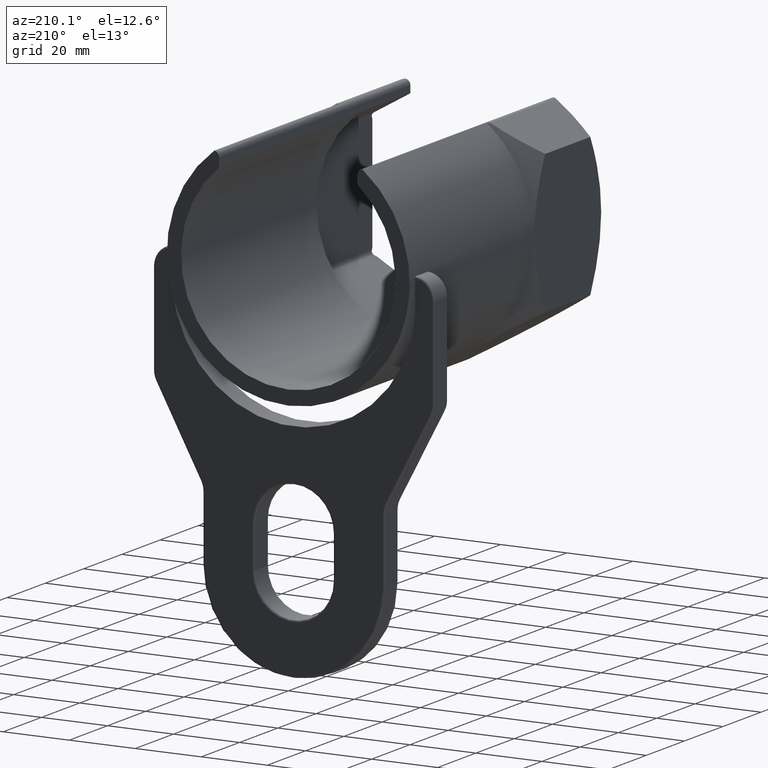
[diagram: clean part render]
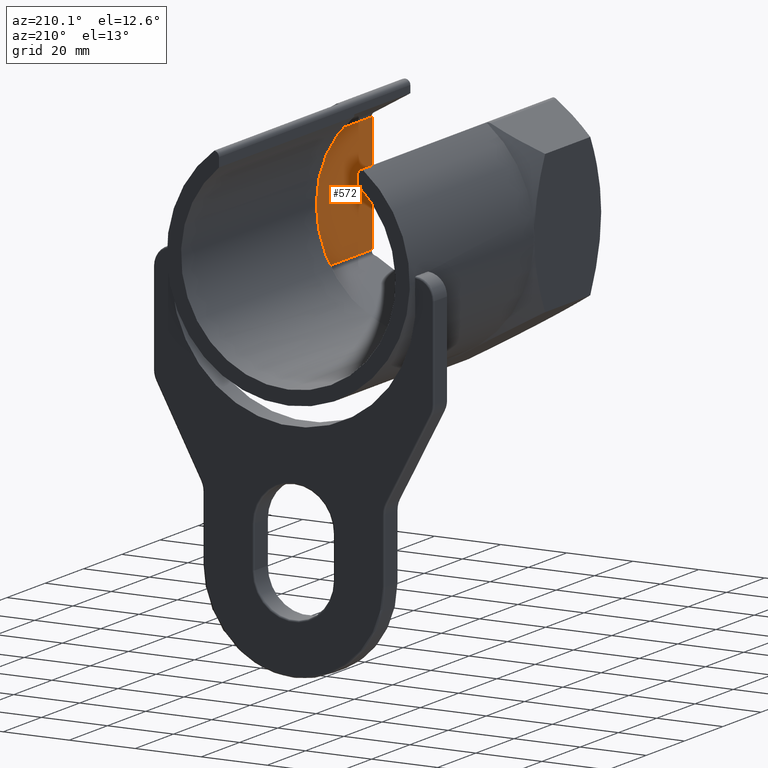
[diagram: same view with one face highlighted and labeled with its STEP entity id]
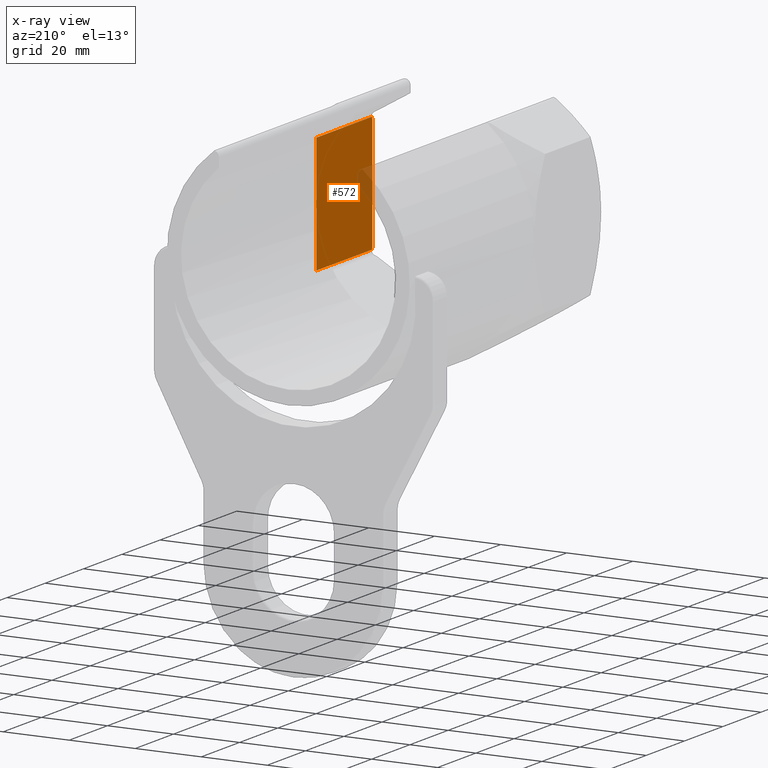
[diagram: x-ray of the same camera — body ghosted, the highlighted face saturated]
A machine part, auxiliary view. The second image highlights one B-rep face of the part: STEP entity #572.
The next image is the same camera in x-ray: the body ghosted, the highlighted face saturated — about 5% of this face is hidden behind the body in this view.
In plain terms, the highlighted planar face has unit normal (1, 0, 0).
Its self-contained STEP definition (entity closure, byte-faithful):
#430 = ORIENTED_EDGE ( 'NONE', *, *, #555, .T. ) ;
#431 = ORIENTED_EDGE ( 'NONE', *, *, #543, .F. ) ;
#432 = EDGE_CURVE ( 'NONE', #2791, #502, #1399, .T. ) ;
#433 = ORIENTED_EDGE ( 'NONE', *, *, #501, .F. ) ;
#434 = ORIENTED_EDGE ( 'NONE', *, *, #432, .T. ) ;
#463 = EDGE_CURVE ( 'NONE', #3096, #2791, #1450, .T. ) ;
#501 = EDGE_CURVE ( 'NONE', #576, #502, #1500, .T. ) ;
#502 = VERTEX_POINT ( 'NONE', #1496 ) ;
#541 = VERTEX_POINT ( 'NONE', #1558 ) ;
#543 = EDGE_CURVE ( 'NONE', #541, #576, #1557, .T. ) ;
#555 = EDGE_CURVE ( 'NONE', #541, #2747, #1598, .T. ) ;
#556 = ORIENTED_EDGE ( 'NONE', *, *, #2759, .T. ) ;
#557 = ORIENTED_EDGE ( 'NONE', *, *, #3094, .T. ) ;
#572 = ADVANCED_FACE ( 'NONE', ( #1638 ), #1637, .F. ) ;
#573 = EDGE_LOOP ( 'NONE', ( #2726, #434, #433, #431, #430, #556, #557 ) ) ;
#576 = VERTEX_POINT ( 'NONE', #1627 ) ;
#1396 = DIRECTION ( 'NONE',  ( 0.0000000000000000000, 1.000000000000000000, 0.0000000000000000000 ) ) ;
#1397 = VECTOR ( 'NONE', #1396, 1000.000000000000000 ) ;
#1398 = CARTESIAN_POINT ( 'NONE',  ( 32.49999999999999300, 29.30597966083865200, 17.84012331795943900 ) ) ;
#1399 = LINE ( 'NONE', #1398, #1397 ) ;
#1446 = CARTESIAN_POINT ( 'NONE',  ( 32.49999999999999300, 0.2684398910045975300, 17.84012331795959500 ) ) ;
#1447 = CARTESIAN_POINT ( 'NONE',  ( 32.49999999999999300, 0.1780807539252705400, 17.65234313647608700 ) ) ;
#1448 = CARTESIAN_POINT ( 'NONE',  ( 32.49999999999999300, 0.08858982540145979300, 17.46408924687121100 ) ) ;
#1449 = CARTESIAN_POINT ( 'NONE',  ( 32.49999999999999300, 0.0000000000000000000, 17.27534370135653700 ) ) ;
#1450 = B_SPLINE_CURVE_WITH_KNOTS ( 'NONE', 3,
 ( #1449, #1448, #1447, #1446 ),
 .UNSPECIFIED., .F., .F.,
 ( 4, 4 ),
 ( 0.03031410839248205300, 0.03093755678168470800 ),
 .UNSPECIFIED. ) ;
#1496 = CARTESIAN_POINT ( 'NONE',  ( 32.49999999999999300, 29.30597966083865200, 17.84012331795943900 ) ) ;
#1497 = DIRECTION ( 'NONE',  ( 0.0000000000000000000, 0.0000000000000000000, 1.000000000000000000 ) ) ;
#1498 = VECTOR ( 'NONE', #1497, 1000.000000000000000 ) ;
#1499 = CARTESIAN_POINT ( 'NONE',  ( 32.49999999999999300, 29.30597966083865200, -18.76388374866283800 ) ) ;
#1500 = LINE ( 'NONE', #1499, #1498 ) ;
#1554 = DIRECTION ( 'NONE',  ( 0.0000000000000000000, 0.0000000000000000000, 1.000000000000000000 ) ) ;
#1555 = VECTOR ( 'NONE', #1554, 1000.000000000000000 ) ;
#1556 = CARTESIAN_POINT ( 'NONE',  ( 32.49999999999999300, 29.30597966083865200, -18.76388374866283800 ) ) ;
#1557 = LINE ( 'NONE', #1556, #1555 ) ;
#1558 = CARTESIAN_POINT ( 'NONE',  ( 32.49999999999999300, 29.30597966083865200, -17.84012331795943900 ) ) ;
#1595 = DIRECTION ( 'NONE',  ( 0.0000000000000000000, -1.000000000000000000, 0.0000000000000000000 ) ) ;
#1596 = VECTOR ( 'NONE', #1595, 1000.000000000000000 ) ;
#1597 = CARTESIAN_POINT ( 'NONE',  ( 32.49999999999999300, 0.7216878364870449300, -17.84012331795943900 ) ) ;
#1598 = LINE ( 'NONE', #1597, #1596 ) ;
#1627 = CARTESIAN_POINT ( 'NONE',  ( 32.49999999999999300, 29.30597966083865200, 0.0000000000000000000 ) ) ;
#1633 = DIRECTION ( 'NONE',  ( 0.0000000000000000000, 0.0000000000000000000, -1.000000000000000000 ) ) ;
#1634 = DIRECTION ( 'NONE',  ( 1.000000000000000000, 0.0000000000000000000, 0.0000000000000000000 ) ) ;
#1635 = CARTESIAN_POINT ( 'NONE',  ( 32.49999999999999300, 29.30597966083865200, -18.76388374866283800 ) ) ;
#1636 = AXIS2_PLACEMENT_3D ( 'NONE', #1635, #1634, #1633 ) ;
#1637 = PLANE ( 'NONE',  #1636 ) ;
#1638 = FACE_OUTER_BOUND ( 'NONE', #573, .T. ) ;
#1688 = CARTESIAN_POINT ( 'NONE',  ( 32.49999999999999300, 0.2684398910045969200, -17.84012331795959500 ) ) ;
#1719 = CARTESIAN_POINT ( 'NONE',  ( 32.49999999999999300, 0.0000000000000000000, -17.27534370135653700 ) ) ;
#1720 = CARTESIAN_POINT ( 'NONE',  ( 32.49999999999999300, 0.08857101070377938800, -17.46404916111236400 ) ) ;
#1721 = CARTESIAN_POINT ( 'NONE',  ( 32.49999999999999300, 0.1780617918476425100, -17.65230373036293800 ) ) ;
#1722 = CARTESIAN_POINT ( 'NONE',  ( 32.49999999999999300, 0.2684398910045969200, -17.84012331795959500 ) ) ;
#1724 = B_SPLINE_CURVE_WITH_KNOTS ( 'NONE', 3,
 ( #1722, #1721, #1720, #1719 ),
 .UNSPECIFIED., .F., .F.,
 ( 4, 4 ),
 ( 0.01548050521928269800, 0.01610578814611053600 ),
 .UNSPECIFIED. ) ;
#1751 = CARTESIAN_POINT ( 'NONE',  ( 32.49999999999999300, 0.2684398910045975300, 17.84012331795959500 ) ) ;
#2359 = LINE ( 'NONE', #2410, #2409 ) ;
#2401 = CARTESIAN_POINT ( 'NONE',  ( 32.49999999999999300, 0.0000000000000000000, -17.27534370135653700 ) ) ;
#2406 = CARTESIAN_POINT ( 'NONE',  ( 32.49999999999999300, 0.0000000000000000000, 17.27534370135653700 ) ) ;
#2408 = DIRECTION ( 'NONE',  ( 0.0000000000000000000, 0.0000000000000000000, 1.000000000000000000 ) ) ;
#2409 = VECTOR ( 'NONE', #2408, 1000.000000000000000 ) ;
#2410 = CARTESIAN_POINT ( 'NONE',  ( 32.49999999999999300, 0.0000000000000000000, -18.76388374866283800 ) ) ;
#2726 = ORIENTED_EDGE ( 'NONE', *, *, #463, .T. ) ;
#2747 = VERTEX_POINT ( 'NONE', #1688 ) ;
#2759 = EDGE_CURVE ( 'NONE', #2747, #3099, #1724, .T. ) ;
#2791 = VERTEX_POINT ( 'NONE', #1751 ) ;
#3094 = EDGE_CURVE ( 'NONE', #3099, #3096, #2359, .T. ) ;
#3096 = VERTEX_POINT ( 'NONE', #2406 ) ;
#3099 = VERTEX_POINT ( 'NONE', #2401 ) ;